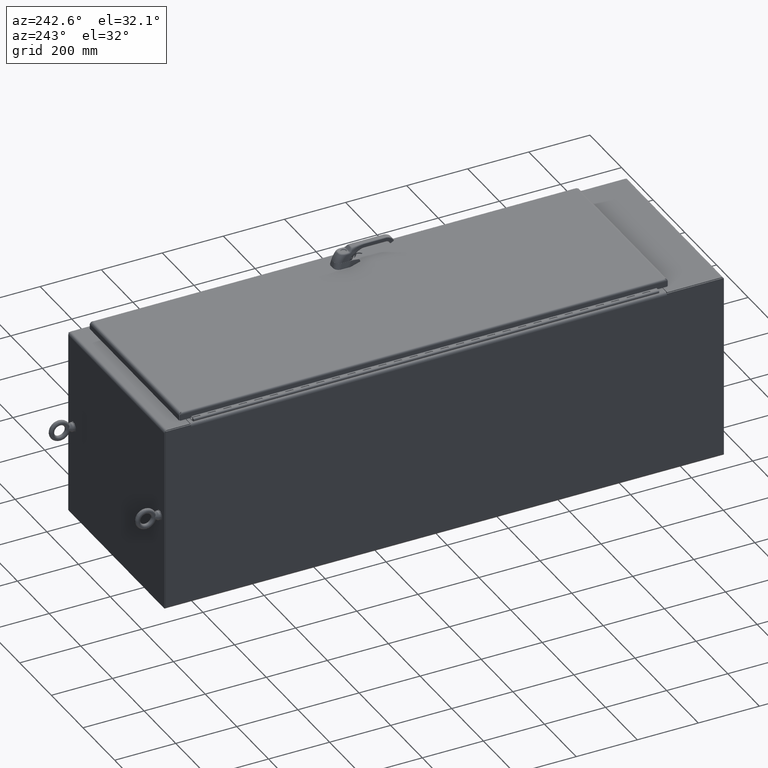
[diagram: clean part render]
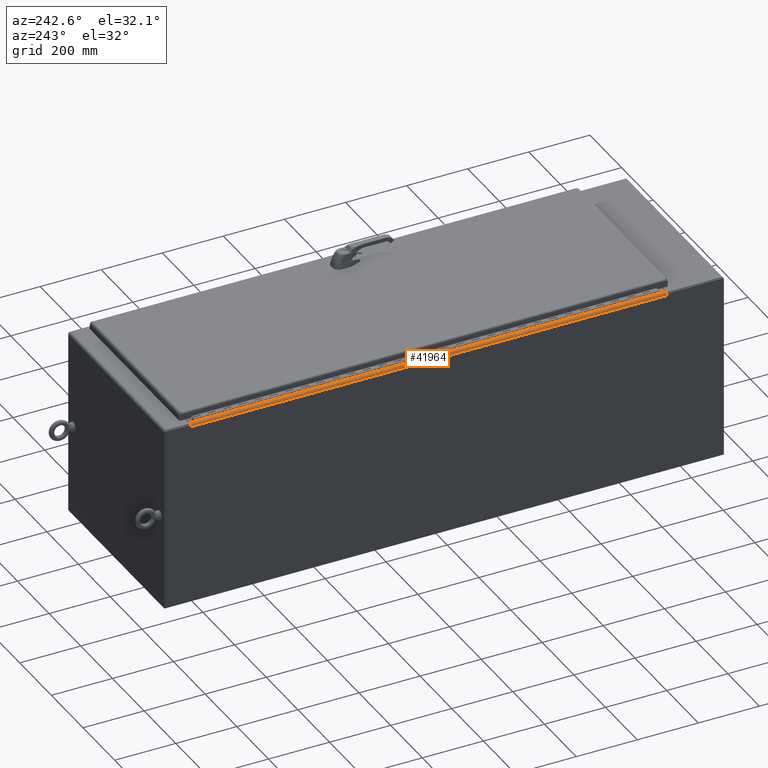
[diagram: same view with one face highlighted and labeled with its STEP entity id]
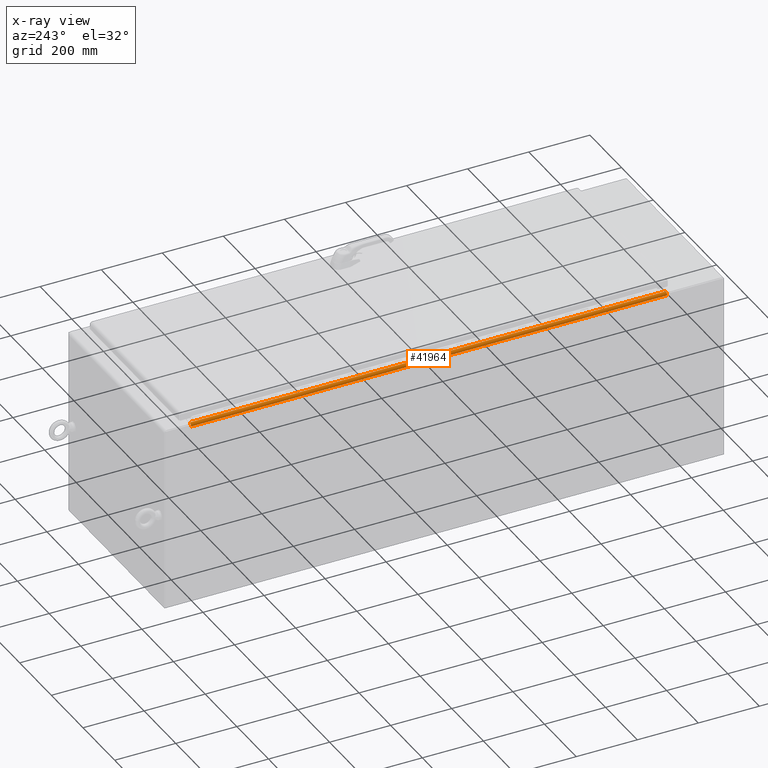
[diagram: x-ray of the same camera — body ghosted, the highlighted face saturated]
A machine part, auxiliary view. The second image highlights one B-rep face of the part: STEP entity #41964.
The next image is the same camera in x-ray: the body ghosted, the highlighted face saturated — about 0% of this face is hidden behind the body in this view.
In plain terms, the highlighted cylindrical surface (edge-blend (fillet) strip) has radius 8.9916 mm, axis along (-0, 1, 0).
Its self-contained STEP definition (entity closure, byte-faithful):
#3278=FACE_OUTER_BOUND('',#5923,.T.);
#5923=EDGE_LOOP('',(#27920,#27921,#27922,#27923));
#8925=CIRCLE('',#45517,0.354000000000005);
#8926=CIRCLE('',#45518,0.354000000000004);
#11228=LINE('',#63468,#14520);
#11229=LINE('',#63472,#14521);
#14520=VECTOR('',#50454,0.393700787401575);
#14521=VECTOR('',#50457,0.393700787401575);
#17798=VERTEX_POINT('',#63459);
#17800=VERTEX_POINT('',#63467);
#17801=VERTEX_POINT('',#63469);
#17802=VERTEX_POINT('',#63471);
#21710=EDGE_CURVE('',#17798,#17800,#11228,.T.);
#21711=EDGE_CURVE('',#17801,#17798,#8925,.T.);
#21712=EDGE_CURVE('',#17802,#17801,#11229,.T.);
#21713=EDGE_CURVE('',#17800,#17802,#8926,.T.);
#27920=ORIENTED_EDGE('',*,*,#21710,.F.);
#27921=ORIENTED_EDGE('',*,*,#21711,.F.);
#27922=ORIENTED_EDGE('',*,*,#21712,.F.);
#27923=ORIENTED_EDGE('',*,*,#21713,.F.);
#40180=CYLINDRICAL_SURFACE('',#45516,0.354000000000004);
#41964=ADVANCED_FACE('',(#3278),#40180,.T.);
#45516=AXIS2_PLACEMENT_3D('',#63466,#50452,#50453);
#45517=AXIS2_PLACEMENT_3D('',#63470,#50455,#50456);
#45518=AXIS2_PLACEMENT_3D('',#63473,#50458,#50459);
#50452=DIRECTION('center_axis',(-1.47549006959634E-16,1.,6.68114497718063E-18));
#50453=DIRECTION('ref_axis',(-1.,-1.47549006959634E-16,-6.08876136679848E-17));
#50454=DIRECTION('',(1.47549006959634E-16,-1.,-1.94396555076681E-18));
#50455=DIRECTION('center_axis',(-1.47549006959634E-16,1.,6.68114497718063E-18));
#50456=DIRECTION('ref_axis',(-1.,0.,0.));
#50457=DIRECTION('',(-1.47561993668285E-16,1.,0.));
#50458=DIRECTION('center_axis',(1.47549006959634E-16,-1.,-6.68114497718063E-18));
#50459=DIRECTION('ref_axis',(-5.55630100406285E-15,0.,1.));
#63459=CARTESIAN_POINT('',(0.354000000000001,-3.271,24.125));
#63466=CARTESIAN_POINT('Origin',(0.354000000000008,-33.9585,23.771));
#63467=CARTESIAN_POINT('',(0.354000000000012,-64.646,24.125));
#63468=CARTESIAN_POINT('',(0.354000000000006,-33.9585,24.125));
#63469=CARTESIAN_POINT('',(-9.39755709820506E-16,-3.271,23.771));
#63470=CARTESIAN_POINT('Origin',(0.354000000000003,-3.271,23.771));
#63471=CARTESIAN_POINT('',(8.10812484519553E-15,-64.646,23.771));
#63472=CARTESIAN_POINT('',(5.95542862618809E-15,-50.30225,23.771));
#63473=CARTESIAN_POINT('Origin',(0.354000000000012,-64.646,23.771));